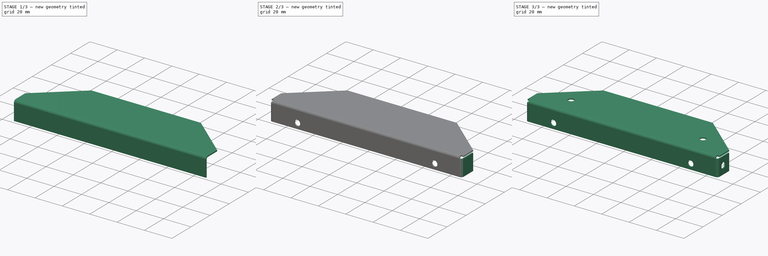
[diagram: build sequence overview — one tinted view per stage of 3, left to right]
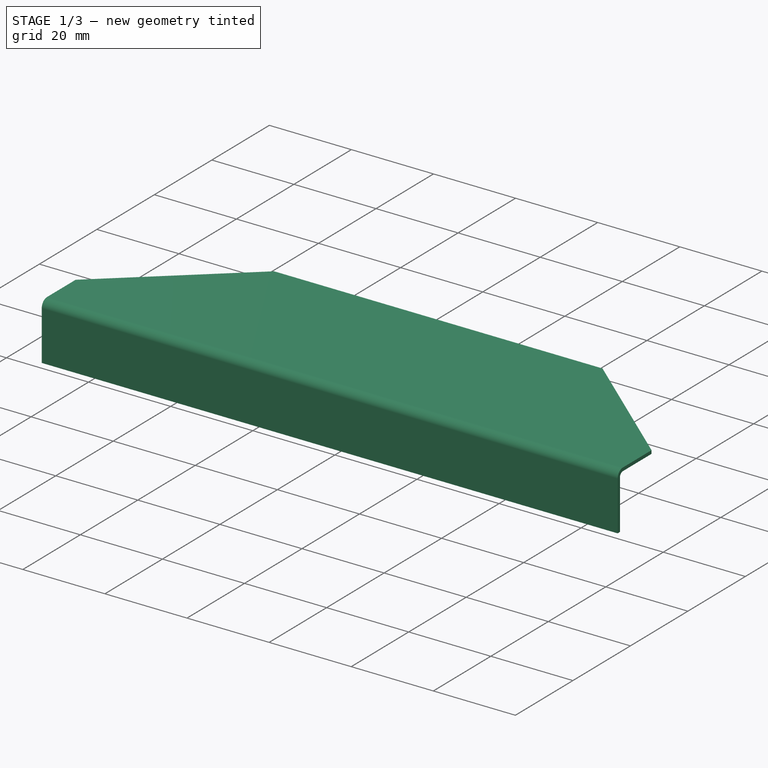
[diagram: stage 1 of 3 — iso view after this stage's code; geometry added in this stage tinted green]
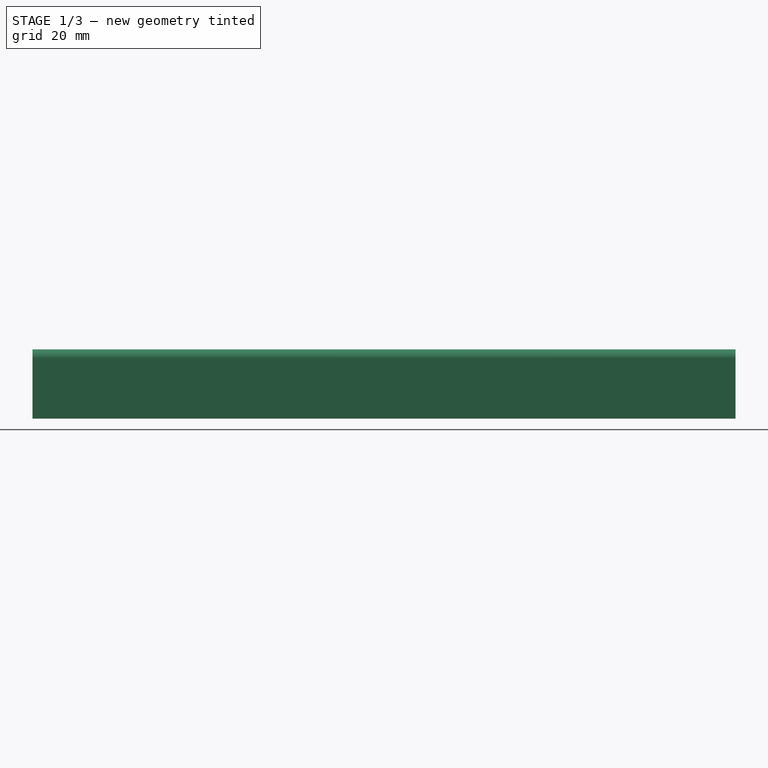
[diagram: stage 1 of 3 — front view after this stage's code; geometry added in this stage tinted green]
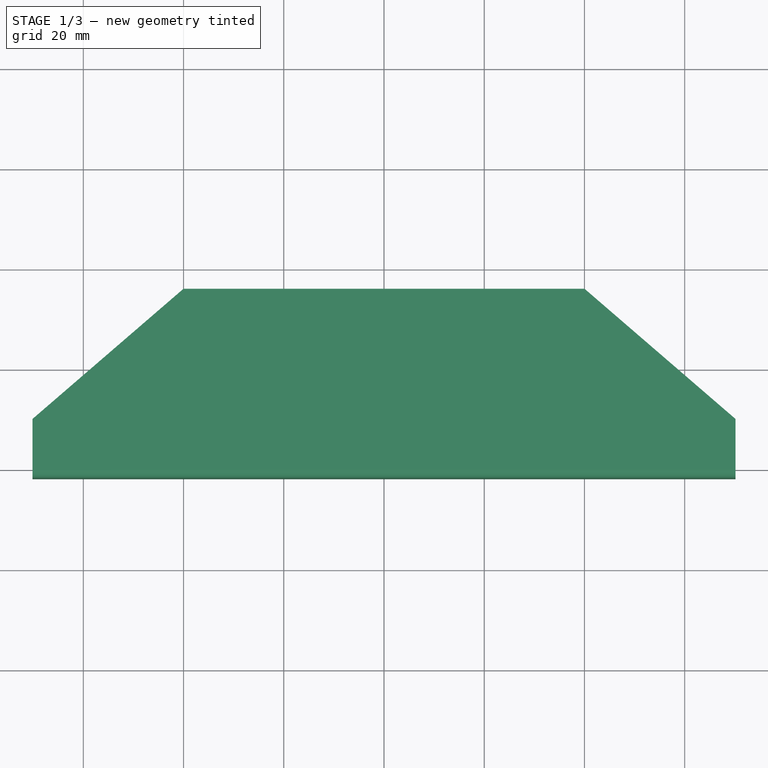
[diagram: stage 1 of 3 — top view after this stage's code; geometry added in this stage tinted green]
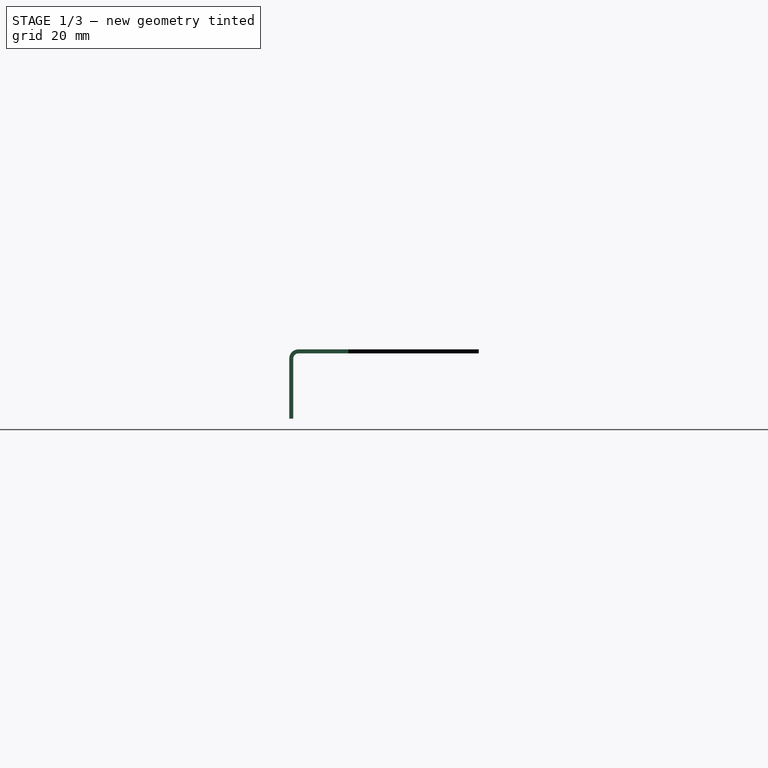
[diagram: stage 1 of 3 — right view after this stage's code; geometry added in this stage tinted green]
FCSTD DOCUMENT  (FreeCAD 0.19R24291 (Git))
Label: side_wall
License: All rights reserved
LicenseURL: http://en.wikipedia.org/wiki/All_rights_reserved
objects: Sketcher::SketchObject×5, PartDesign::FeaturePython×4, PartDesign::Pocket×3, PartDesign::Body×1, Part::Feature×1
note: 17 computed .brp shape members not serialized (recipe doc carries the construction recipe); baked Part::Feature solids carry a one-line shape summary decoded from their .brp

FEATURE [Sketcher::SketchObject] Sketch
  FullyConstrained = true
  MapMode = 5
  Support = -> [XY_Plane]
  sketch-geometry (6):
    g0: LineSegment StartX=-70.15 StartY=0 StartZ=0 EndX=70.15 EndY=0 EndZ=0
    g1: LineSegment StartX=70.15 StartY=0 StartZ=0 EndX=70.15 EndY=10 EndZ=0
    g2: LineSegment StartX=70.15 StartY=10 StartZ=0 EndX=40 EndY=36 EndZ=0
    g3: LineSegment StartX=40 StartY=36 StartZ=0 EndX=-40 EndY=36 EndZ=0
    g4: LineSegment StartX=-40 StartY=36 StartZ=0 EndX=-70.15 EndY=10 EndZ=0
    g5: LineSegment StartX=-70.15 StartY=10 StartZ=0 EndX=-70.15 EndY=0 EndZ=0
  constraints (16):
    c: PointOnObject(g0,g-1)
    c: Coincident(g0,g1)
    c: Vertical(g1)
    c: Coincident(g1,g2)
    c: Coincident(g2,g3)
    c: Coincident(g3,g4)
    c: Coincident(g4,g5)
    c: Coincident(g5,g0)
    c: Vertical(g5)
    c: Symmetric(g0,g0,g-1)
    c: Symmetric(g2,g3,g-2)
    c: Horizontal(g4,g1)
    c: DistanceX(g0,g0) = 140.3
    c: DistanceY(g-1,g2) = 36
    c: DistanceX(g3,g3) = 80
    c: DistanceY(g1,g1) = 10
FEATURE [PartDesign::FeaturePython] BaseBend  # WARN: FeaturePython — macro-defined, semantics opaque (R4)
  BendSide = 0
  BendSketch = -> Sketch
  MidPlane = false
  Reverse = false
  length = 100
  radius = 1
  thickness = 0.8
FEATURE [PartDesign::FeaturePython] Bend  # WARN: FeaturePython — macro-defined, semantics opaque (R4)
  AutoMiter = true
  BaseFeature = -> BaseBend
  BendType = 0
  LengthList = [12]
  ReliefFactor = 0.7
  UseReliefFactor = false
  angle = 90
  baseObject = -> BaseBend [Edge4]
  bendAList = [90]
  extend1 = 0
  extend2 = 0
  gap1 = 0
  gap2 = 0
  invert = false
  kfactor = 0.5
  length = 12
  maxExtendDist = 5
  minGap = 0.1
  minReliefGap = 1
  miterangle1 = 0
  miterangle2 = 0
  offset = 0
  radius = 1
  reliefType = 0
  reliefd = 1
  reliefw = 0.8
  sketchflip = false
  sketchinvert = false
  unfold = false
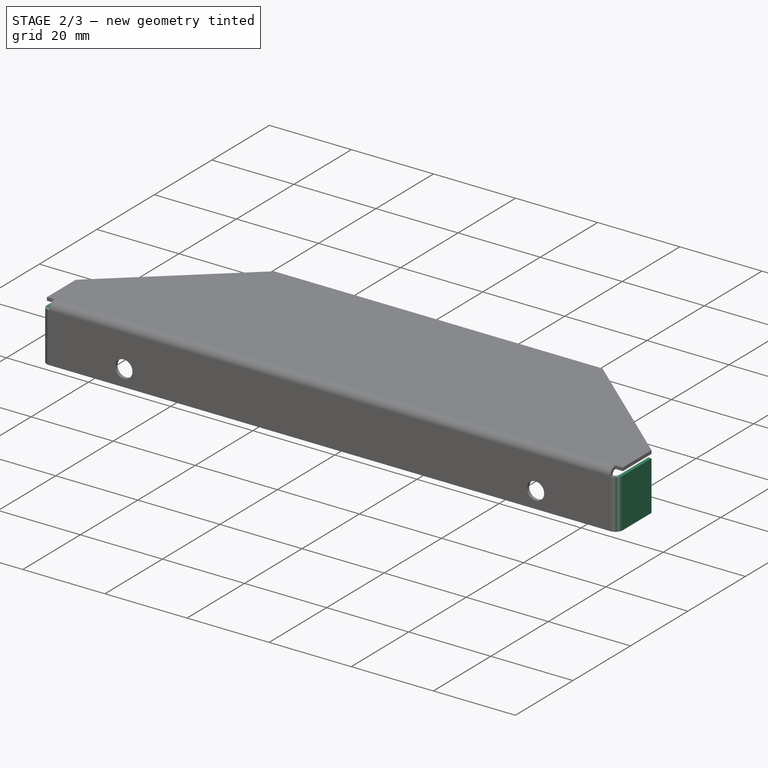
[diagram: stage 2 of 3 — iso view after this stage's code; geometry added in this stage tinted green]
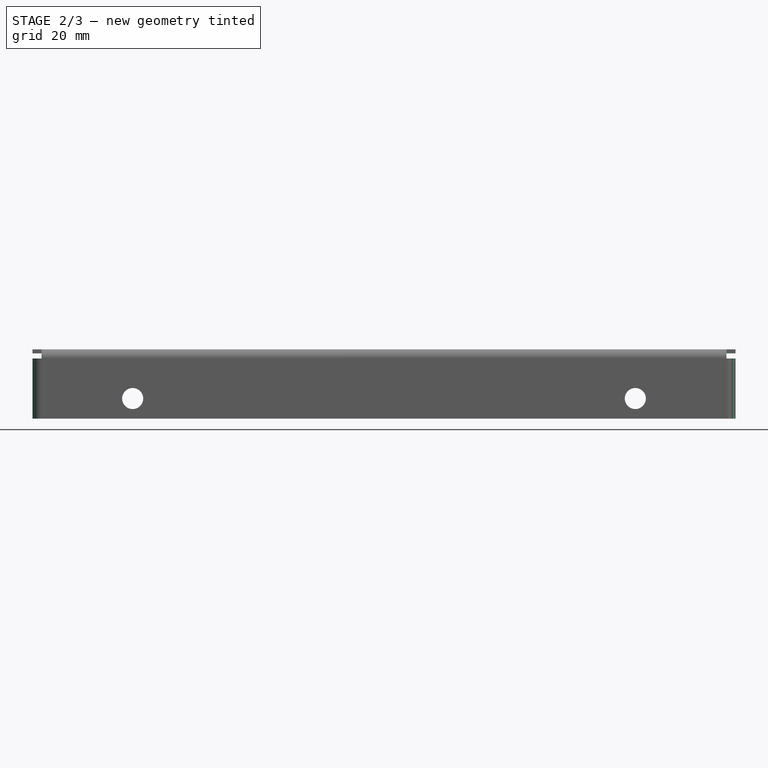
[diagram: stage 2 of 3 — front view after this stage's code; geometry added in this stage tinted green]
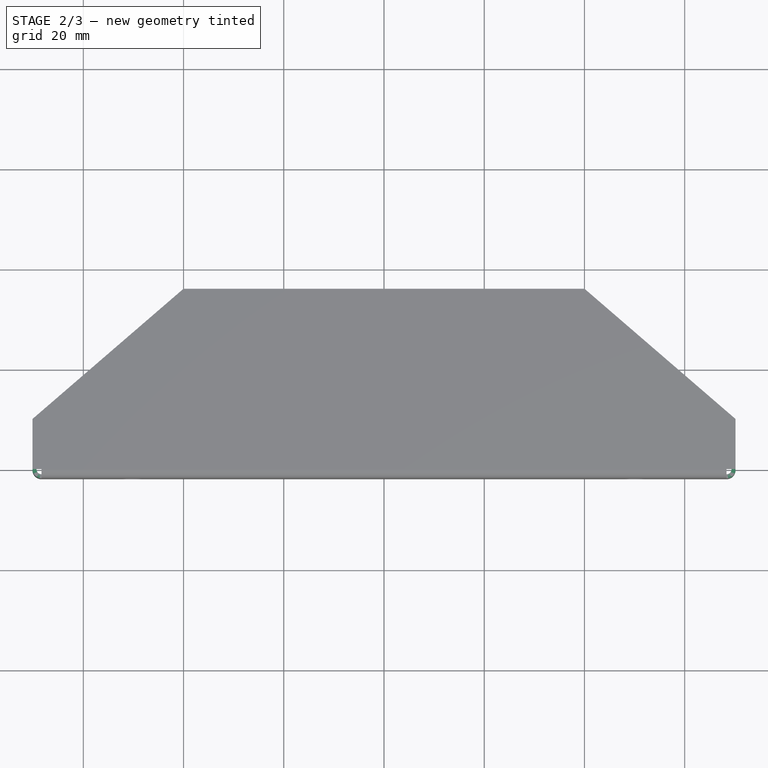
[diagram: stage 2 of 3 — top view after this stage's code; geometry added in this stage tinted green]
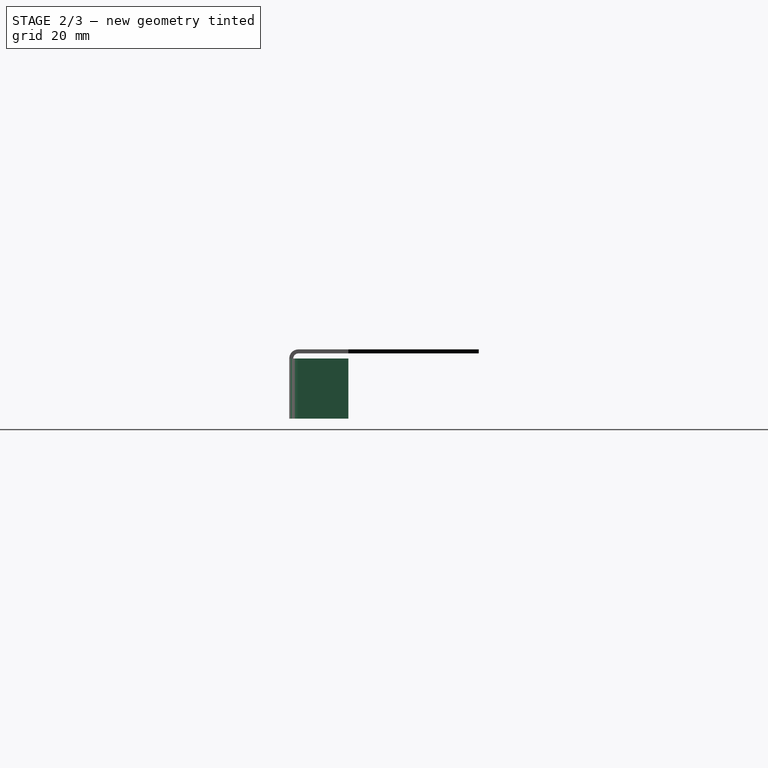
[diagram: stage 2 of 3 — right view after this stage's code; geometry added in this stage tinted green]
FEATURE [Sketcher::SketchObject] Sketch001
  ExternalGeometry = -> [Bend]
  FullyConstrained = true
  MapMode = 5
  Placement = pos=(0,-1.8,2e-16) rot=(1,0,0;1.5708rad)
  Support = -> [Bend]
  sketch-geometry (2):
    g0: Circle CenterX=50.15 CenterY=-9 CenterZ=0 NormalX=0 NormalY=0 NormalZ=1 AngleXU=0 Radius=2.1
    g1: Circle CenterX=-50.15 CenterY=-9 CenterZ=0 NormalX=0 NormalY=0 NormalZ=1 AngleXU=0 Radius=2.1
  constraints (6):
    c: Radius(g0) = 2.1
    c: DistanceX(g0,g-3) = 20
    c: Radius(g1) = 2.1
    c: DistanceX(g-3,g1) = 20
    c: DistanceY(g0,g-4) = 8
    c: DistanceY(g1,g-5) = 8
FEATURE [PartDesign::Pocket] Pocket
  BaseFeature = -> Bend
  Length = 1
  Length2 = 100
  Profile = -> Sketch001
  Type = 0
FEATURE [PartDesign::FeaturePython] Bend001  # WARN: FeaturePython — macro-defined, semantics opaque (R4)
  AutoMiter = true
  BaseFeature = -> Pocket
  BendType = 1
  LengthList = [10]
  ReliefFactor = 0.7
  UseReliefFactor = false
  angle = -90
  baseObject = -> Pocket [Edge16]
  bendAList = [-90]
  extend1 = 0
  extend2 = 0
  gap1 = 0
  gap2 = 0
  invert = false
  kfactor = 0.5
  length = 10
  maxExtendDist = 5
  minGap = 0.1
  minReliefGap = 1
  miterangle1 = 0
  miterangle2 = 0
  offset = 0
  radius = 1
  reliefType = 0
  reliefd = 1
  reliefw = 0.8
  sketchflip = false
  sketchinvert = false
  unfold = false
FEATURE [PartDesign::FeaturePython] Bend002  # WARN: FeaturePython — macro-defined, semantics opaque (R4)
  AutoMiter = true
  BaseFeature = -> Bend001
  BendType = 1
  LengthList = [10]
  ReliefFactor = 0.7
  UseReliefFactor = false
  angle = -90
  baseObject = -> Bend001 [Edge25]
  bendAList = [-90]
  extend1 = 0
  extend2 = 0
  gap1 = 0
  gap2 = 0
  invert = false
  kfactor = 0.5
  length = 10
  maxExtendDist = 5
  minGap = 0.1
  minReliefGap = 1
  miterangle1 = 0
  miterangle2 = 0
  offset = 0
  radius = 1
  reliefType = 0
  reliefd = 1
  reliefw = 0.8
  sketchflip = false
  sketchinvert = false
  unfold = false
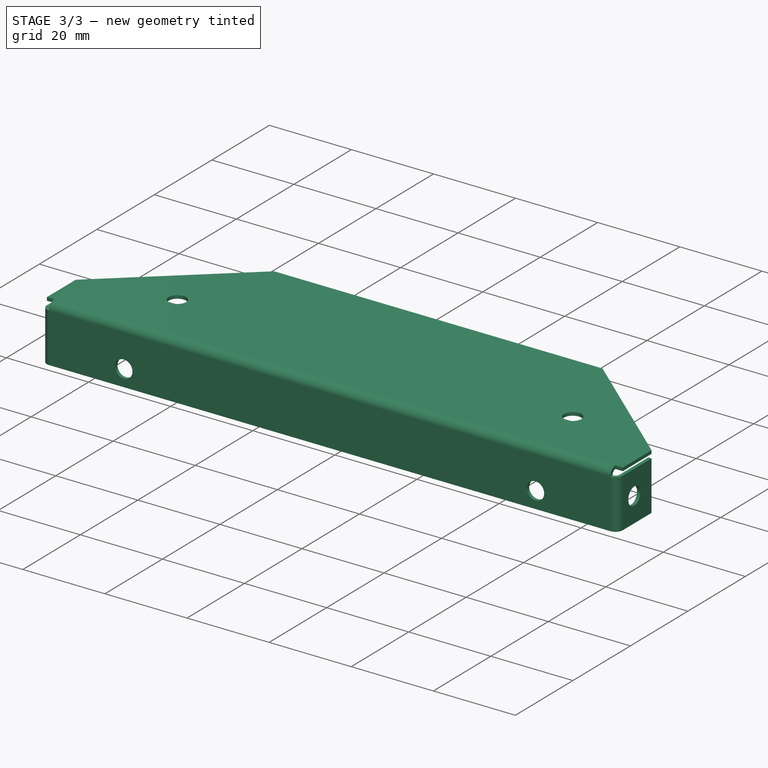
[diagram: stage 3 of 3 — iso view after this stage's code; geometry added in this stage tinted green]
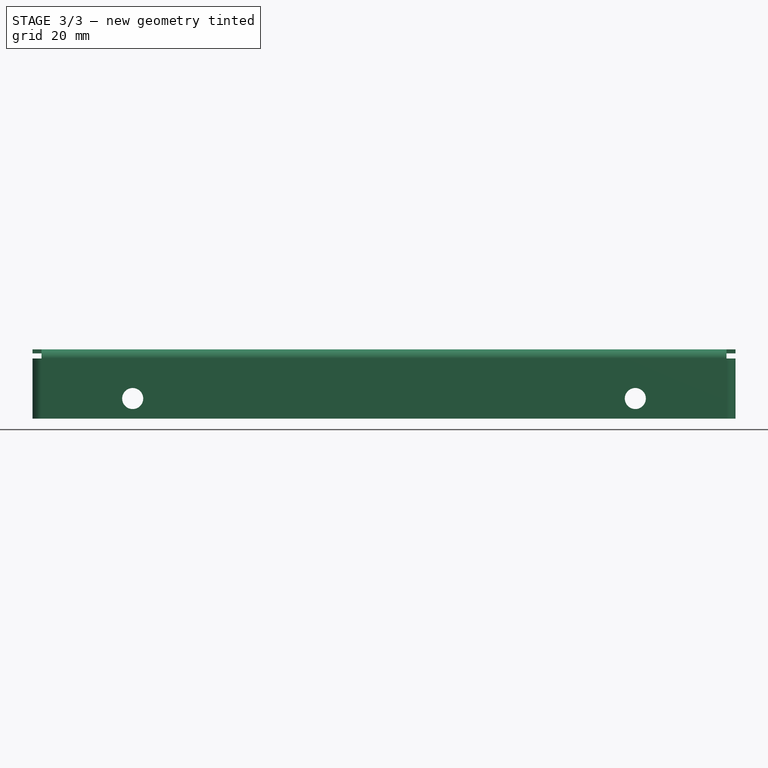
[diagram: stage 3 of 3 — front view after this stage's code; geometry added in this stage tinted green]
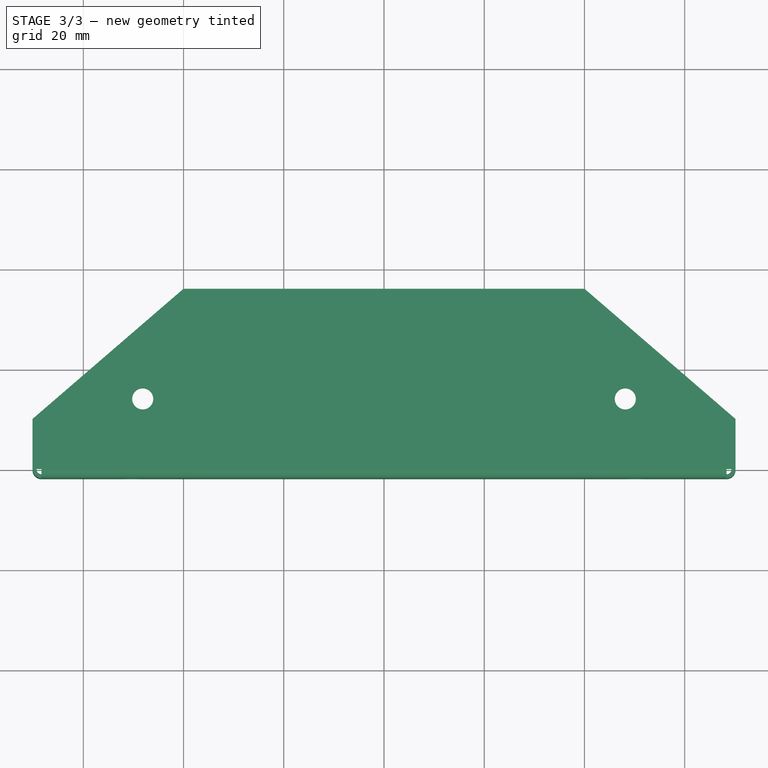
[diagram: stage 3 of 3 — top view after this stage's code; geometry added in this stage tinted green]
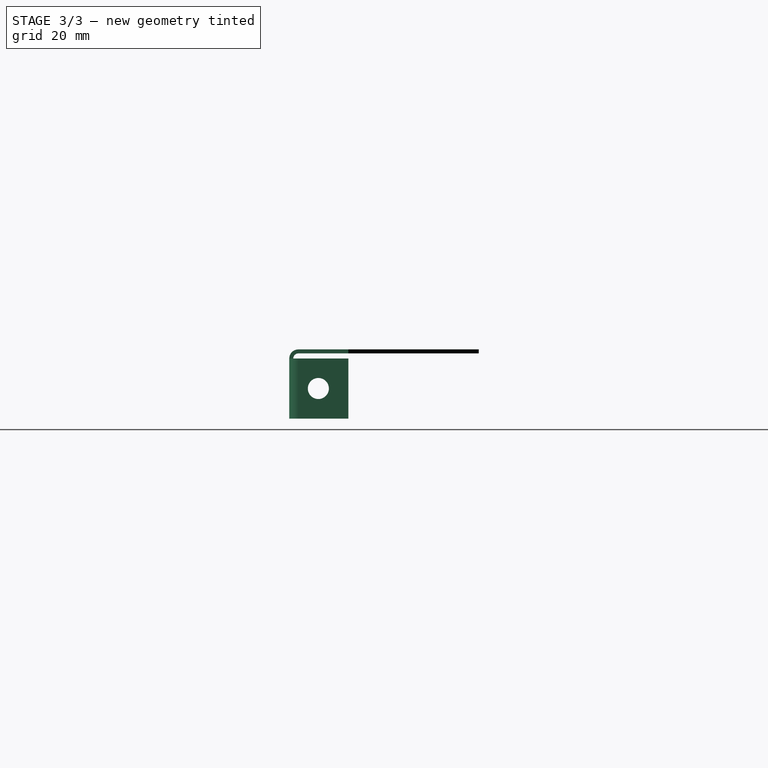
[diagram: stage 3 of 3 — right view after this stage's code; geometry added in this stage tinted green]
FEATURE [Sketcher::SketchObject] Sketch002
  ExternalGeometry = -> [Bend002]
  FullyConstrained = true
  MapMode = 5
  Placement = pos=(70.15,-7.8e-15,0) rot=(0.57735,0.57735,0.57735;2.0944rad)
  Support = -> [Bend002]
  sketch-geometry (1):
    g0: Circle CenterX=4 CenterY=-7 CenterZ=0 NormalX=0 NormalY=0 NormalZ=1 AngleXU=0 Radius=2.1
  constraints (3):
    c: Radius(g0) = 2.1
    c: DistanceY(g0,g-3) = 6
    c: DistanceX(g0,g-3) = 6
FEATURE [PartDesign::Pocket] Pocket001
  BaseFeature = -> Bend002
  Length = 5
  Length2 = 100
  Profile = -> Sketch002
  Type = 1
FEATURE [Sketcher::SketchObject] Sketch003
  ExternalGeometry = -> [Pocket001]
  FullyConstrained = true
  MapMode = 5
  Placement = pos=(0,0,0.8) rot=(0,0,1;0rad)
  Support = -> [Pocket001]
  sketch-geometry (2):
    g0: Circle CenterX=-48.15 CenterY=14 CenterZ=0 NormalX=0 NormalY=0 NormalZ=1 AngleXU=0 Radius=2.1
    g1: Circle CenterX=48.15 CenterY=14 CenterZ=0 NormalX=0 NormalY=0 NormalZ=1 AngleXU=0 Radius=2.1
  constraints (6):
    c: Radius(g0) = 2.1
    c: DistanceX(g-3,g0) = 22
    c: DistanceY(g-3,g0) = 4
    c: Radius(g1) = 2.1
    c: DistanceX(g1,g-4) = 22
    c: DistanceY(g-4,g1) = 4
FEATURE [PartDesign::Pocket] Pocket002
  BaseFeature = -> Pocket001
  Length = 1
  Length2 = 100
  Profile = -> Sketch003
  Type = 0
FEATURE [PartDesign::Body] Body
  Group = -> [Sketch,BaseBend,Bend,Sketch001,Pocket,Bend001,Bend002,Sketch002,Pocket001,Sketch003,Pocket002]
  Origin = -> Origin
  Tip = -> Pocket002
FEATURE [Part::Feature] Unfold
  shape: bbox 160.8 x 50.07 x 0.8 mm, 22 faces (baked)
FEATURE [Sketcher::SketchObject] Unfold_Sketch
  FullyConstrained = false
  sketch-geometry (23):
    g0: LineSegment StartX=-80.4235 StartY=-2.07345 StartZ=0 EndX=-80.4235 EndY=-14.0735 EndZ=0
    g1: LineSegment StartX=68.35 StartY=-2.07345 StartZ=0 EndX=68.35 EndY=0 EndZ=0
    g2: LineSegment StartX=70.15 StartY=0 StartZ=0 EndX=68.35 EndY=0 EndZ=0
    g3: LineSegment StartX=70.15 StartY=0 StartZ=0 EndX=70.15 EndY=10 EndZ=0
    g4: LineSegment StartX=70.15 StartY=10 StartZ=0 EndX=40 EndY=36 EndZ=0
    g5: LineSegment StartX=-68.35 StartY=0 StartZ=0 EndX=-68.35 EndY=-2.07345 EndZ=0
    g6: LineSegment StartX=-70.15 StartY=0 StartZ=0 EndX=-68.35 EndY=0 EndZ=0
    g7: LineSegment StartX=-70.15 StartY=10 StartZ=0 EndX=-70.15 EndY=0 EndZ=0
    g8: LineSegment StartX=-40 StartY=36 StartZ=0 EndX=-70.15 EndY=10 EndZ=0
    g9: LineSegment StartX=40 StartY=36 StartZ=0 EndX=-40 EndY=36 EndZ=0
    g10: LineSegment StartX=80.4235 StartY=-14.0735 StartZ=0 EndX=80.4235 EndY=-2.07345 EndZ=0
    g11: Circle CenterX=-48.15 CenterY=14 CenterZ=0 NormalX=0 NormalY=0 NormalZ=1 AngleXU=0 Radius=2.1
    g12: Circle CenterX=48.15 CenterY=14 CenterZ=0 NormalX=0 NormalY=0 NormalZ=1 AngleXU=0 Radius=2.1
    g13: Circle CenterX=-50.15 CenterY=-10.0735 CenterZ=0 NormalX=0 NormalY=0 NormalZ=1 AngleXU=0 Radius=2.1
    g14: Circle CenterX=50.15 CenterY=-10.0735 CenterZ=0 NormalX=0 NormalY=0 NormalZ=1 AngleXU=0 Radius=2.1
    g15: Circle CenterX=-74.4235 CenterY=-8.07345 CenterZ=0 NormalX=0 NormalY=0 NormalZ=-1 AngleXU=0 Radius=2.1
    g16: Circle CenterX=74.4235 CenterY=-8.07345 CenterZ=0 NormalX=0 NormalY=0 NormalZ=1 AngleXU=0 Radius=2.1
    g17: LineSegment StartX=-68.35 StartY=-2.07345 StartZ=0 EndX=-80.4235 EndY=-2.07345 EndZ=0
    g18: LineSegment StartX=80.4235 StartY=-2.07345 StartZ=0 EndX=68.35 EndY=-2.07345 EndZ=0
    g19: LineSegment StartX=-80.4235 StartY=-14.0735 StartZ=0 EndX=80.4235 EndY=-14.0735 EndZ=0
    g20: LineSegment StartX=-69.3867 StartY=-2.07345 StartZ=0 EndX=-69.3867 EndY=-14.0735 EndZ=0
    g21: LineSegment StartX=69.3867 StartY=-14.0735 StartZ=0 EndX=69.3867 EndY=-2.07345 EndZ=0
    g22: LineSegment StartX=68.35 StartY=-1.03673 StartZ=0 EndX=-68.35 EndY=-1.03673 EndZ=0
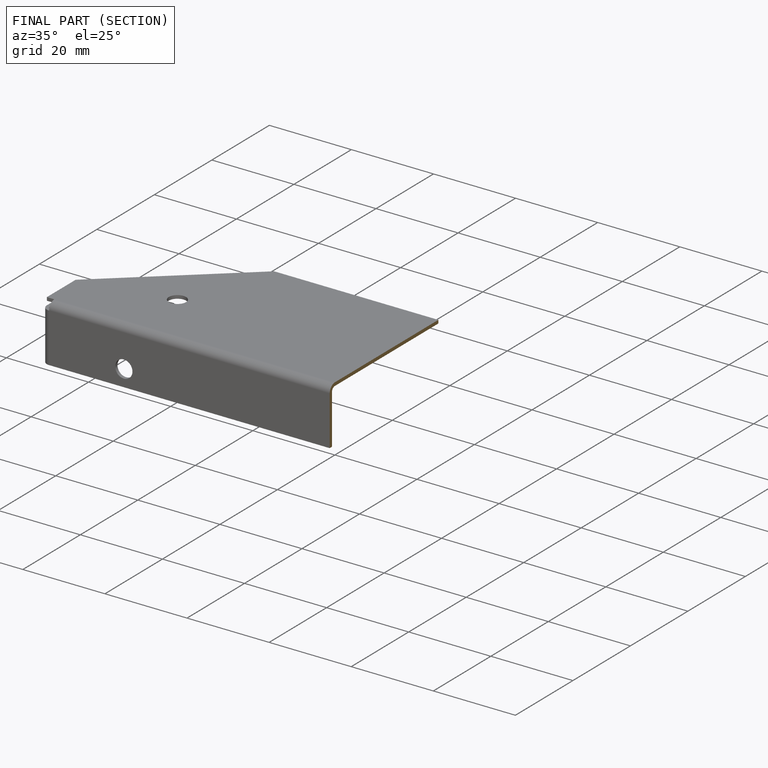
[diagram: finished part — half-section view (interior)]
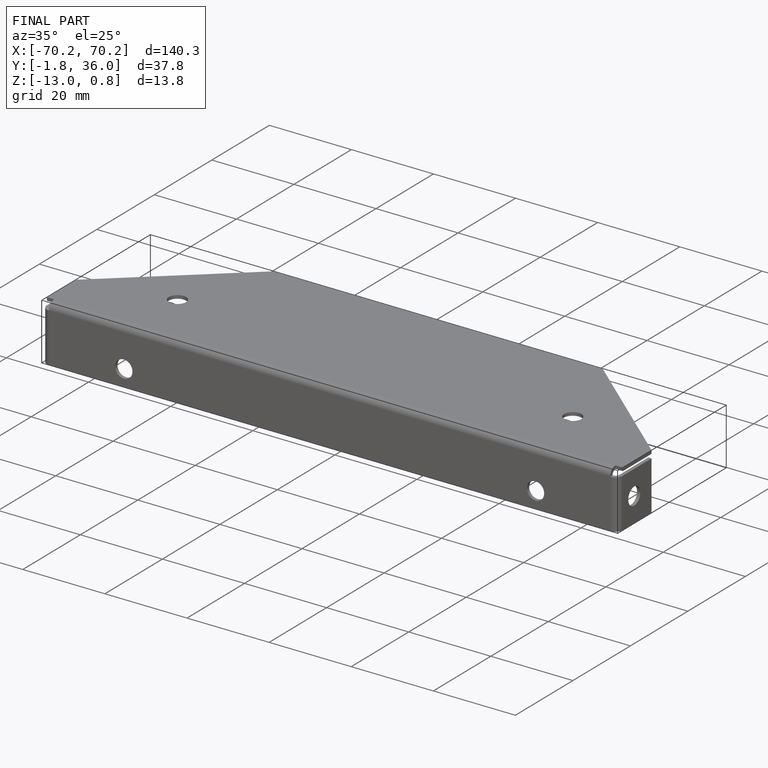
[diagram: finished part — iso view with bounding-box wireframe]
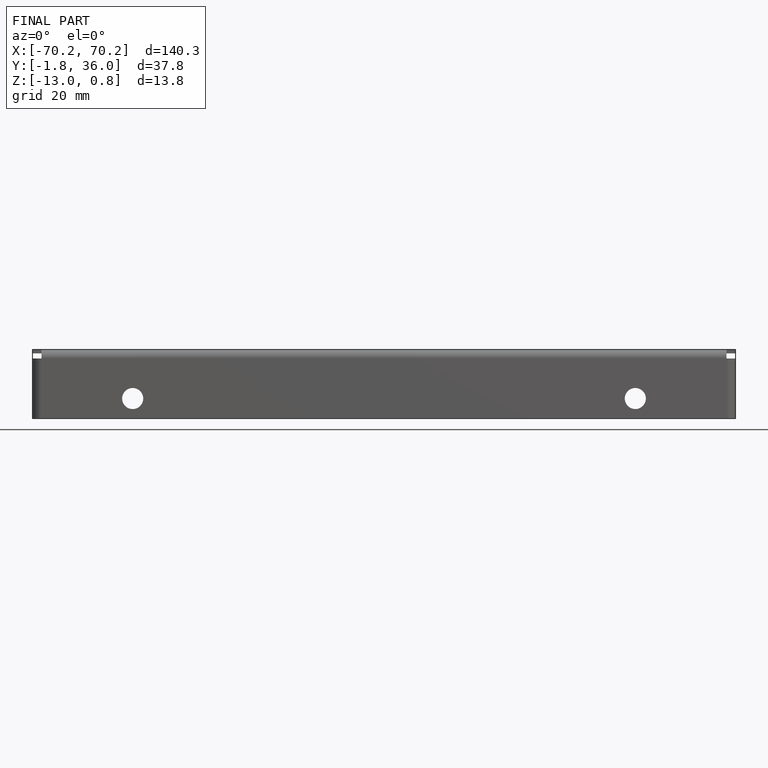
[diagram: finished part — front view with bounding-box wireframe]
